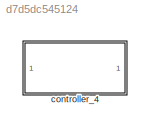
MODEL slx_d7d5dc545124
KIND model
CONFIG AbsTol = auto
CONFIG EnableMultiTasking = off
CONFIG FixedStep = auto
CONFIG MaxStep = auto
CONFIG MinStep = auto
CONFIG RelTol = 1e-3
CONFIG SampleTimeConstraint = Unconstrained
CONFIG SolverName = VariableStepAuto
CONFIG StartTime = 0.0
CONFIG StopTime = 10.0
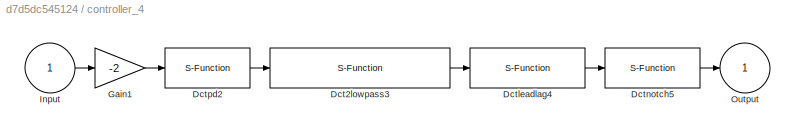
BLOCK [SubSystem] controller_4
BLOCK [S-Function] controller_4/Dct2lowpass3
  EnableBusSupport = off
  FunctionName = dlowpass2
  Parameters = f_den, b_den, 0.001
  SFcnIsStateOwnerBlock = off
  SFunctionDeploymentMode = off
BLOCK [S-Function] controller_4/Dctleadlag4
  EnableBusSupport = off
  FunctionName = dleadlag
  Parameters = f_num, f_den, 0.001
  SFcnIsStateOwnerBlock = off
  SFunctionDeploymentMode = off
BLOCK [S-Function] controller_4/Dctnotch5
  EnableBusSupport = off
  FunctionName = dnotch
  Parameters = f_num, b_num, f_den, b_den, 0.001
  SFcnIsStateOwnerBlock = off
  SFunctionDeploymentMode = off
BLOCK [S-Function] controller_4/Dctpd2
  EnableBusSupport = off
  FunctionName = dpd
  Parameters = kp, kv, 0.001
  SFcnIsStateOwnerBlock = off
  SFunctionDeploymentMode = off
BLOCK [Gain] controller_4/Gain1
  Gain = -2
BLOCK [Inport] controller_4/Input
BLOCK [Outport] controller_4/Output
LINE controller_4/Dct2lowpass3:1 -> controller_4/Dctleadlag4:1
LINE controller_4/Dctleadlag4:1 -> controller_4/Dctnotch5:1
LINE controller_4/Dctnotch5:1 -> controller_4/Output:1
LINE controller_4/Dctpd2:1 -> controller_4/Dct2lowpass3:1
LINE controller_4/Gain1:1 -> controller_4/Dctpd2:1
LINE controller_4/Input:1 -> controller_4/Gain1:1
